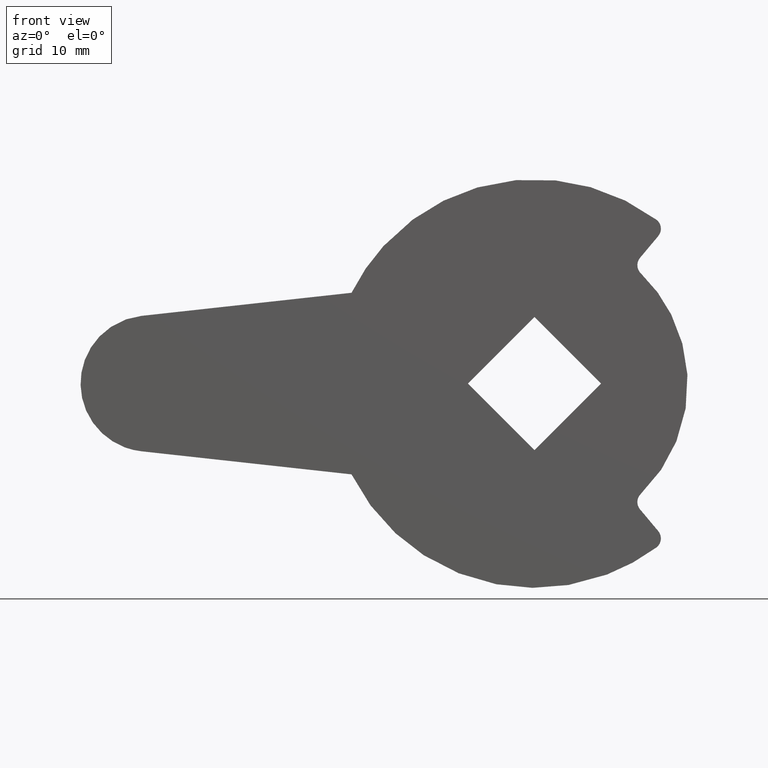
[diagram: clean part render]
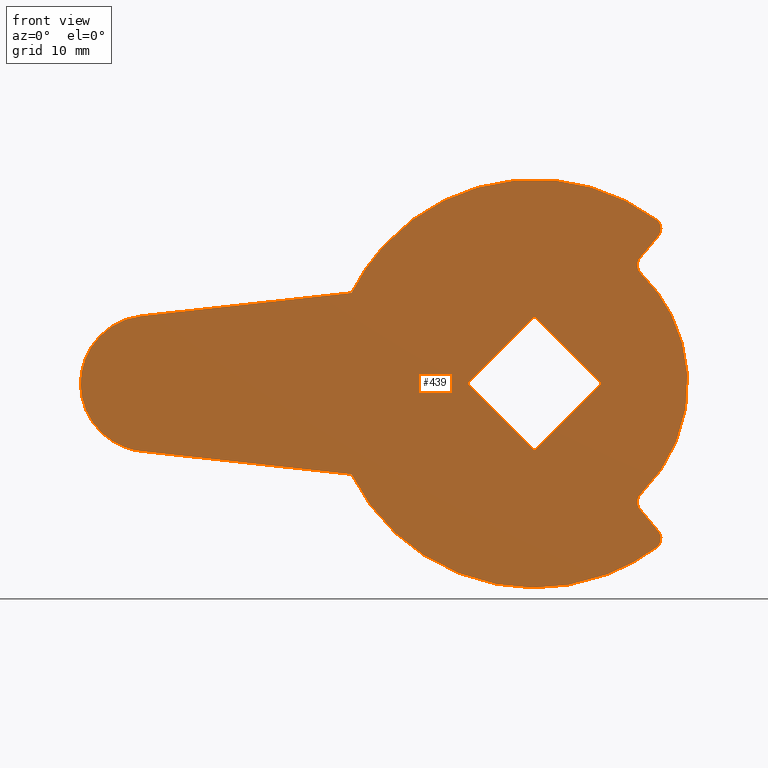
[diagram: same view with one face highlighted and labeled with its STEP entity id]
A machine part, front view. The second image highlights one B-rep face of the part: STEP entity #439.
In plain terms, the highlighted face is a freeform B-spline surface patch.
Its self-contained STEP definition (entity closure, byte-faithful):
#242=CARTESIAN_POINT('',(-42.672116572253337,-2.0,19.798160946943760));
#243=CARTESIAN_POINT('',(16.172309228567329,-2.0,19.798160946943760));
#244=CARTESIAN_POINT('',(-42.672116572253337,-2.0,-19.798180419614450));
#245=CARTESIAN_POINT('',(16.172309228567329,-2.0,-19.798180419614450));
#246=B_SPLINE_SURFACE_WITH_KNOTS('',1,1,((#242,#244),(#243,#245)),.UNSPECIFIED.,.F.,.F.,.U.,(2,2),(2,2),(0.0,58.844425800820673),(0.0,39.596341366558207),.UNSPECIFIED.);
#247=CARTESIAN_POINT('',(-16.124516390019249,-2.0,7.999998199249859));
#248=VERTEX_POINT('',#247);
#249=CARTESIAN_POINT('',(-34.633145301659049,-2.0,5.966479173588591));
#250=VERTEX_POINT('',#249);
#251=CARTESIAN_POINT('',(-16.124516390019249,-2.0,7.999998199249859));
#252=CARTESIAN_POINT('',(-34.633145301659049,-2.0,5.966479173588591));
#253=QUASI_UNIFORM_CURVE('',1,(#251,#252),.UNSPECIFIED.,.F.,.U.);
#254=EDGE_CURVE('',#248,#250,#253,.T.);
#255=ORIENTED_EDGE('',*,*,#254,.T.);
#256=CARTESIAN_POINT('',(-34.633145301716652,-2.0,-5.966479173582481));
#257=VERTEX_POINT('',#256);
#258=CARTESIAN_POINT('',(-34.633145301659049,-2.0,5.966479173588592));
#259=CARTESIAN_POINT('',(-39.999799999973945,-2.000000000000000,5.396805595601411));
#260=CARTESIAN_POINT('',(-39.999799999999993,-2.0,2.896253E-011));
#261=CARTESIAN_POINT('',(-39.999800000026049,-2.000000000000000,-5.396805595543485));
#262=CARTESIAN_POINT('',(-34.633145301716652,-2.0,-5.966479173582478));
#270=(BOUNDED_CURVE()B_SPLINE_CURVE(2,(#258,#259,#260,#261,#262),.UNSPECIFIED.,.F.,.U.)B_SPLINE_CURVE_WITH_KNOTS((3,2,3),(0.0,0.500000000000000,1.0),.UNSPECIFIED.)CURVE()GEOMETRIC_REPRESENTATION_ITEM()RATIONAL_B_SPLINE_CURVE((1.0,0.743490938169830,1.0,0.743490938169830,1.0))REPRESENTATION_ITEM(''));
#271=EDGE_CURVE('',#250,#257,#270,.T.);
#272=ORIENTED_EDGE('',*,*,#271,.T.);
#273=CARTESIAN_POINT('',(-16.124516390019249,-2.0,-7.999998199249848));
#274=VERTEX_POINT('',#273);
#275=CARTESIAN_POINT('',(-34.633145301716652,-2.0,-5.966479173582481));
#276=CARTESIAN_POINT('',(-16.124516390019249,-2.0,-7.999998199249848));
#277=QUASI_UNIFORM_CURVE('',1,(#275,#276),.UNSPECIFIED.,.F.,.U.);
#278=EDGE_CURVE('',#257,#274,#277,.T.);
#279=ORIENTED_EDGE('',*,*,#278,.T.);
#280=CARTESIAN_POINT('',(10.739112776660621,-2.0,-14.445497084531420));
#281=VERTEX_POINT('',#280);
#282=CARTESIAN_POINT('',(-16.124516390019249,-2.0,-7.999998199249840));
#283=CARTESIAN_POINT('',(-12.383854566696858,-2.000000000000000,-15.539582422374766));
#284=CARTESIAN_POINT('',(-4.199610718877589,-2.0,-17.503261055320671));
#285=CARTESIAN_POINT('',(3.984633128941676,-2.000000000000000,-19.466939688266585));
#286=CARTESIAN_POINT('',(10.739112776660621,-2.0,-14.445497084531439));
#294=(BOUNDED_CURVE()B_SPLINE_CURVE(2,(#282,#283,#284,#285,#286),.UNSPECIFIED.,.F.,.U.)B_SPLINE_CURVE_WITH_KNOTS((3,2,3),(0.0,0.500000000000000,1.0),.UNSPECIFIED.)CURVE()GEOMETRIC_REPRESENTATION_ITEM()RATIONAL_B_SPLINE_CURVE((1.0,0.905864136016763,1.0,0.905864136016763,1.0))REPRESENTATION_ITEM(''));
#295=EDGE_CURVE('',#274,#281,#294,.T.);
#296=ORIENTED_EDGE('',*,*,#295,.T.);
#297=CARTESIAN_POINT('',(10.903888410552099,-2.0,-12.994704011830500));
#298=VERTEX_POINT('',#297);
#299=CARTESIAN_POINT('',(10.739112776660621,-2.0,-14.445497084531430));
#300=CARTESIAN_POINT('',(11.087159702476013,-2.0,-14.186750629950188));
#301=CARTESIAN_POINT('',(11.136101848850220,-2.0,-13.755831778382770));
#302=CARTESIAN_POINT('',(11.185043995224420,-2.0,-13.324912926815346));
#303=CARTESIAN_POINT('',(10.903888410552110,-2.0,-12.994704011830491));
#311=(BOUNDED_CURVE()B_SPLINE_CURVE(2,(#299,#300,#301,#302,#303),.UNSPECIFIED.,.F.,.U.)B_SPLINE_CURVE_WITH_KNOTS((3,2,3),(0.0,0.500000000000000,1.0),.UNSPECIFIED.)CURVE()GEOMETRIC_REPRESENTATION_ITEM()RATIONAL_B_SPLINE_CURVE((1.0,0.917434344498665,1.0,0.917434344498665,1.0))REPRESENTATION_ITEM(''));
#312=EDGE_CURVE('',#281,#298,#311,.T.);
#313=ORIENTED_EDGE('',*,*,#312,.T.);
#314=CARTESIAN_POINT('',(9.302911589459120,-2.0,-11.086695988182900));
#315=VERTEX_POINT('',#314);
#316=CARTESIAN_POINT('',(10.903888410552099,-2.0,-12.994704011830500));
#317=CARTESIAN_POINT('',(9.302911589459120,-2.0,-11.086695988182900));
#318=QUASI_UNIFORM_CURVE('',1,(#316,#317),.UNSPECIFIED.,.F.,.U.);
#319=EDGE_CURVE('',#298,#315,#318,.T.);
#320=ORIENTED_EDGE('',*,*,#319,.T.);
#321=CARTESIAN_POINT('',(9.370232998813620,-2.0,-9.718481708829620));
#322=VERTEX_POINT('',#321);
#323=CARTESIAN_POINT('',(9.370232998813631,-2.0,-9.718481708829630));
#324=CARTESIAN_POINT('',(8.693520258583256,-2.000000000000000,-10.370948212989592));
#325=CARTESIAN_POINT('',(9.302911589459129,-2.0,-11.086695988182891));
#333=(BOUNDED_CURVE()B_SPLINE_CURVE(2,(#323,#324,#325),.UNSPECIFIED.,.F.,.U.)CURVE()GEOMETRIC_REPRESENTATION_ITEM()QUASI_UNIFORM_CURVE()RATIONAL_B_SPLINE_CURVE((1.0,0.728632280257199,1.0))REPRESENTATION_ITEM(''));
#334=EDGE_CURVE('',#322,#315,#333,.T.);
#335=ORIENTED_EDGE('',*,*,#334,.F.);
#336=CARTESIAN_POINT('',(9.370201414459581,-2.0,9.718512161400970));
#337=VERTEX_POINT('',#336);
#338=CARTESIAN_POINT('',(9.370232998813620,-2.0,-9.718481708829620));
#339=CARTESIAN_POINT('',(13.500002456554776,-2.000000000000000,-5.736679563119544));
#340=CARTESIAN_POINT('',(13.499993134639370,-2.0,0.000021937009793));
#341=CARTESIAN_POINT('',(13.499983812723970,-2.000000000000000,5.736723437139132));
#342=CARTESIAN_POINT('',(9.370201414459576,-2.0,9.718512161400966));
#350=(BOUNDED_CURVE()B_SPLINE_CURVE(2,(#338,#339,#340,#341,#342),.UNSPECIFIED.,.F.,.U.)B_SPLINE_CURVE_WITH_KNOTS((3,2,3),(0.0,0.500000000000000,1.0),.UNSPECIFIED.)CURVE()GEOMETRIC_REPRESENTATION_ITEM()RATIONAL_B_SPLINE_CURVE((1.0,0.920350869292249,1.0,0.920350869292249,1.0))REPRESENTATION_ITEM(''));
#351=EDGE_CURVE('',#322,#337,#350,.T.);
#352=ORIENTED_EDGE('',*,*,#351,.T.);
#353=CARTESIAN_POINT('',(9.302911589461571,-2.0,11.086695988185660));
#354=VERTEX_POINT('',#353);
#355=CARTESIAN_POINT('',(9.302911589461564,-2.0,11.086695988185671));
#356=CARTESIAN_POINT('',(8.693486324257897,-2.000000000000000,10.370976687543207));
#357=CARTESIAN_POINT('',(9.370201414459581,-2.0,9.718512161400970));
#365=(BOUNDED_CURVE()B_SPLINE_CURVE(2,(#355,#356,#357),.UNSPECIFIED.,.F.,.U.)CURVE()GEOMETRIC_REPRESENTATION_ITEM()QUASI_UNIFORM_CURVE()RATIONAL_B_SPLINE_CURVE((1.0,0.728615029618787,1.0))REPRESENTATION_ITEM(''));
#366=EDGE_CURVE('',#354,#337,#365,.T.);
#367=ORIENTED_EDGE('',*,*,#366,.F.);
#368=CARTESIAN_POINT('',(10.903888410565161,-2.0,12.994704011845860));
#369=VERTEX_POINT('',#368);
#370=CARTESIAN_POINT('',(9.302911589461571,-2.0,11.086695988185660));
#371=CARTESIAN_POINT('',(10.903888410565161,-2.0,12.994704011845860));
#372=QUASI_UNIFORM_CURVE('',1,(#370,#371),.UNSPECIFIED.,.F.,.U.);
#373=EDGE_CURVE('',#354,#369,#372,.T.);
#374=ORIENTED_EDGE('',*,*,#373,.T.);
#375=CARTESIAN_POINT('',(10.739072857427560,-2.0,14.445526761287001));
#376=VERTEX_POINT('',#375);
#377=CARTESIAN_POINT('',(10.903888410565150,-2.0,12.994704011845871));
#378=CARTESIAN_POINT('',(11.185033449875226,-2.000000000000000,13.324930315240922));
#379=CARTESIAN_POINT('',(11.136079863430229,-2.0,13.755854311969820));
#380=CARTESIAN_POINT('',(11.087126276985247,-2.000000000000000,14.186778308698713));
#381=CARTESIAN_POINT('',(10.739072857427569,-2.0,14.445526761287020));
#389=(BOUNDED_CURVE()B_SPLINE_CURVE(2,(#377,#378,#379,#380,#381),.UNSPECIFIED.,.F.,.U.)B_SPLINE_CURVE_WITH_KNOTS((3,2,3),(0.0,0.500000000000000,1.0),.UNSPECIFIED.)CURVE()GEOMETRIC_REPRESENTATION_ITEM()RATIONAL_B_SPLINE_CURVE((1.0,0.917438250673473,1.0,0.917438250673473,1.0))REPRESENTATION_ITEM(''));
#390=EDGE_CURVE('',#369,#376,#389,.T.);
#391=ORIENTED_EDGE('',*,*,#390,.T.);
#392=CARTESIAN_POINT('',(10.739072857427580,-2.0,14.445526761287010));
#393=CARTESIAN_POINT('',(3.984586888391909,-2.0,19.466919151968014));
#394=CARTESIAN_POINT('',(-4.199630048120307,-2.0,17.503235016676548));
#395=CARTESIAN_POINT('',(-12.383846984632507,-2.0,15.539550881385084));
#396=CARTESIAN_POINT('',(-16.124516390019242,-2.0,7.999998199249866));
#404=(BOUNDED_CURVE()B_SPLINE_CURVE(2,(#392,#393,#394,#395,#396),.UNSPECIFIED.,.F.,.U.)B_SPLINE_CURVE_WITH_KNOTS((3,2,3),(0.0,0.500000000000000,1.0),.UNSPECIFIED.)CURVE()GEOMETRIC_REPRESENTATION_ITEM()RATIONAL_B_SPLINE_CURVE((1.0,0.905864952288435,1.0,0.905864952288435,1.0))REPRESENTATION_ITEM(''));
#405=EDGE_CURVE('',#376,#248,#404,.T.);
#406=ORIENTED_EDGE('',*,*,#405,.T.);
#407=EDGE_LOOP('',(#255,#272,#279,#296,#313,#320,#335,#352,#367,#374,#391,#406));
#408=FACE_OUTER_BOUND('',#407,.T.);
#409=CARTESIAN_POINT('',(5.868999999999900,-2.0,0.0));
#410=VERTEX_POINT('',#409);
#411=CARTESIAN_POINT('',(0.000100000000003,-2.0,-5.869000000000000));
#412=VERTEX_POINT('',#411);
#413=CARTESIAN_POINT('',(5.868999999999900,-2.0,0.0));
#414=CARTESIAN_POINT('',(0.000100000000003,-2.0,-5.869000000000000));
#415=QUASI_UNIFORM_CURVE('',1,(#413,#414),.UNSPECIFIED.,.F.,.U.);
#416=EDGE_CURVE('',#410,#412,#415,.T.);
#417=ORIENTED_EDGE('',*,*,#416,.T.);
#418=CARTESIAN_POINT('',(-5.868900000000000,-2.0,0.0));
#419=VERTEX_POINT('',#418);
#420=CARTESIAN_POINT('',(0.000100000000003,-2.0,-5.869000000000000));
#421=CARTESIAN_POINT('',(-5.868900000000000,-2.0,0.0));
#422=QUASI_UNIFORM_CURVE('',1,(#420,#421),.UNSPECIFIED.,.F.,.U.);
#423=EDGE_CURVE('',#412,#419,#422,.T.);
#424=ORIENTED_EDGE('',*,*,#423,.T.);
#425=CARTESIAN_POINT('',(0.000100000000003,-2.0,5.868999999999900));
#426=VERTEX_POINT('',#425);
#427=CARTESIAN_POINT('',(-5.868900000000000,-2.0,0.0));
#428=CARTESIAN_POINT('',(0.000100000000003,-2.0,5.868999999999900));
#429=QUASI_UNIFORM_CURVE('',1,(#427,#428),.UNSPECIFIED.,.F.,.U.);
#430=EDGE_CURVE('',#419,#426,#429,.T.);
#431=ORIENTED_EDGE('',*,*,#430,.T.);
#432=CARTESIAN_POINT('',(0.000100000000003,-2.0,5.868999999999900));
#433=CARTESIAN_POINT('',(5.868999999999900,-2.0,0.0));
#434=QUASI_UNIFORM_CURVE('',1,(#432,#433),.UNSPECIFIED.,.F.,.U.);
#435=EDGE_CURVE('',#426,#410,#434,.T.);
#436=ORIENTED_EDGE('',*,*,#435,.T.);
#437=EDGE_LOOP('',(#417,#424,#431,#436));
#438=FACE_BOUND('',#437,.T.);
#439=ADVANCED_FACE('',(#408,#438),#246,.F.);